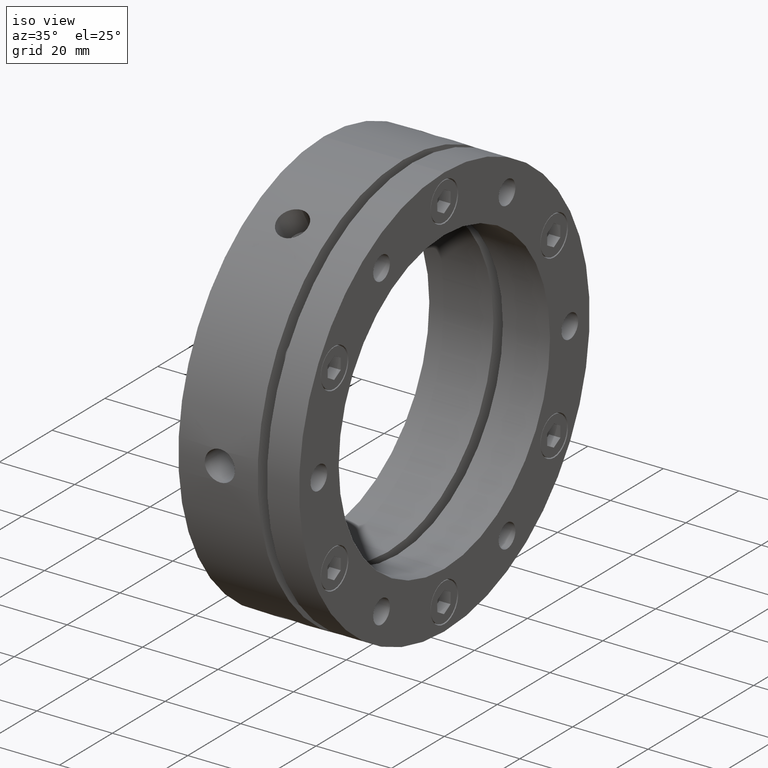
[diagram: clean part render]
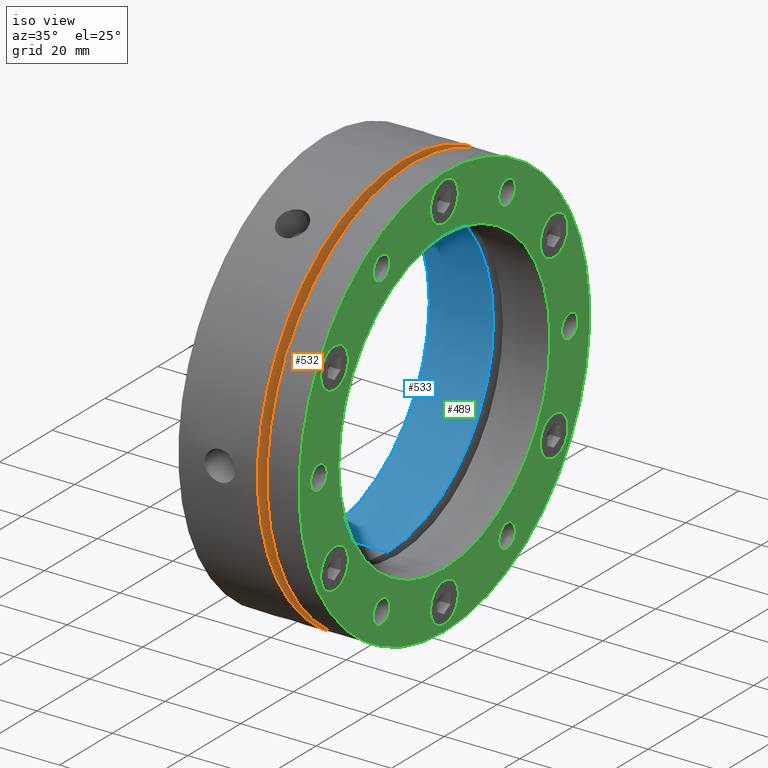
[diagram: same view with three faces highlighted in distinct colors, each labeled with its STEP entity id]
A machine part, iso view with three faces highlighted in distinct colors.
Their STEP definitions:

[orange] entity #532 — the highlighted planar face has unit normal (-1, 0, 0).
#24 = VERTEX_POINT ( 'NONE', #4724 ) ;
#50 = VERTEX_POINT ( 'NONE', #4747 ) ;
#72 = VERTEX_POINT ( 'NONE', #4767 ) ;
#75 = VERTEX_POINT ( 'NONE', #4770 ) ;
#76 = VERTEX_POINT ( 'NONE', #4771 ) ;
#79 = VERTEX_POINT ( 'NONE', #4774 ) ;
#80 = VERTEX_POINT ( 'NONE', #4775 ) ;
#83 = VERTEX_POINT ( 'NONE', #4778 ) ;
#84 = VERTEX_POINT ( 'NONE', #4779 ) ;
#87 = VERTEX_POINT ( 'NONE', #4782 ) ;
#88 = VERTEX_POINT ( 'NONE', #4783 ) ;
#238 = EDGE_CURVE ( 'NONE', #4516, #4531, #2577, .T. ) ;
#253 = EDGE_CURVE ( 'NONE', #80, #79, #2603, .T. ) ;
#256 = EDGE_CURVE ( 'NONE', #76, #75, #2607, .T. ) ;
#272 = EDGE_CURVE ( 'NONE', #72, #4522, #2624, .T. ) ;
#275 = EDGE_CURVE ( 'NONE', #4526, #4518, #2631, .T. ) ;
#284 = AXIS2_PLACEMENT_3D ( 'NONE', #3065, #3066, #3067 ) ;
#294 = AXIS2_PLACEMENT_3D ( 'NONE', #3028, #3029, #3030 ) ;
#312 = EDGE_CURVE ( 'NONE', #84, #83, #2653, .T. ) ;
#318 = EDGE_CURVE ( 'NONE', #88, #87, #2664, .T. ) ;
#369 = EDGE_CURVE ( 'NONE', #24, #50, #2741, .T. ) ;
#398 = EDGE_CURVE ( 'NONE', #87, #88, #2771, .T. ) ;
#399 = EDGE_CURVE ( 'NONE', #83, #84, #2772, .T. ) ;
#400 = EDGE_CURVE ( 'NONE', #79, #80, #2773, .T. ) ;
#401 = EDGE_CURVE ( 'NONE', #75, #76, #2774, .T. ) ;
#402 = EDGE_CURVE ( 'NONE', #4522, #72, #2775, .T. ) ;
#403 = EDGE_CURVE ( 'NONE', #4518, #4526, #2776, .T. ) ;
#404 = EDGE_CURVE ( 'NONE', #4531, #4516, #2777, .T. ) ;
#532 = ADVANCED_FACE ( 'NONE', ( #718, #726, #722, #720, #724, #727, #728, #729 ), #3910, .F. ) ;
#718 = FACE_BOUND ( 'NONE', #2419, .T. ) ;
#720 = FACE_BOUND ( 'NONE', #2420, .T. ) ;
#722 = FACE_BOUND ( 'NONE', #2406, .T. ) ;
#724 = FACE_BOUND ( 'NONE', #2399, .T. ) ;
#726 = FACE_BOUND ( 'NONE', #2407, .T. ) ;
#727 = FACE_BOUND ( 'NONE', #2398, .T. ) ;
#728 = FACE_BOUND ( 'NONE', #2397, .T. ) ;
#729 = FACE_OUTER_BOUND ( 'NONE', #2396, .T. ) ;
#976 = CIRCLE ( 'NONE', #4594, 55.00000000000000000 ) ;
#1571 = CARTESIAN_POINT ( 'NONE',  ( 20.99999999999999300, 0.0000000000000000000, 0.0000000000000000000 ) ) ;
#1572 = DIRECTION ( 'NONE',  ( -1.000000000000000000, -0.0000000000000000000, -0.0000000000000000000 ) ) ;
#1573 = DIRECTION ( 'NONE',  ( 0.0000000000000000000, 0.0000000000000000000, -1.000000000000000000 ) ) ;
#1866 = CARTESIAN_POINT ( 'NONE',  ( 20.99999999999999300, 41.56921938165307800, -27.25000000000003900 ) ) ;
#1869 = CARTESIAN_POINT ( 'NONE',  ( 20.99999999999999300, 41.56921938165311300, 27.24999999999998600 ) ) ;
#1870 = CARTESIAN_POINT ( 'NONE',  ( 20.99999999999999300, -8.881783999999999800E-015, -51.25000000000003600 ) ) ;
#1878 = CARTESIAN_POINT ( 'NONE',  ( 20.99999999999999300, 41.56921938165307800, -20.75000000000003900 ) ) ;
#1883 = CARTESIAN_POINT ( 'NONE',  ( 20.99999999999999300, 41.56921938165311300, 20.74999999999998600 ) ) ;
#2173 = ORIENTED_EDGE ( 'NONE', *, *, #3404, .F. ) ;
#2174 = ORIENTED_EDGE ( 'NONE', *, *, #369, .F. ) ;
#2175 = ORIENTED_EDGE ( 'NONE', *, *, #238, .F. ) ;
#2176 = ORIENTED_EDGE ( 'NONE', *, *, #404, .F. ) ;
#2177 = ORIENTED_EDGE ( 'NONE', *, *, #275, .F. ) ;
#2178 = ORIENTED_EDGE ( 'NONE', *, *, #403, .F. ) ;
#2179 = ORIENTED_EDGE ( 'NONE', *, *, #272, .F. ) ;
#2180 = ORIENTED_EDGE ( 'NONE', *, *, #402, .F. ) ;
#2181 = ORIENTED_EDGE ( 'NONE', *, *, #256, .F. ) ;
#2183 = ORIENTED_EDGE ( 'NONE', *, *, #401, .F. ) ;
#2184 = ORIENTED_EDGE ( 'NONE', *, *, #253, .F. ) ;
#2185 = ORIENTED_EDGE ( 'NONE', *, *, #400, .F. ) ;
#2187 = ORIENTED_EDGE ( 'NONE', *, *, #312, .F. ) ;
#2188 = ORIENTED_EDGE ( 'NONE', *, *, #399, .F. ) ;
#2189 = ORIENTED_EDGE ( 'NONE', *, *, #318, .F. ) ;
#2190 = ORIENTED_EDGE ( 'NONE', *, *, #398, .F. ) ;
#2228 = AXIS2_PLACEMENT_3D ( 'NONE', #3127, #3128, #3129 ) ;
#2231 = AXIS2_PLACEMENT_3D ( 'NONE', #3117, #3118, #3119 ) ;
#2233 = AXIS2_PLACEMENT_3D ( 'NONE', #3073, #3074, #3075 ) ;
#2243 = AXIS2_PLACEMENT_3D ( 'NONE', #3508, #3509, #3510 ) ;
#2257 = AXIS2_PLACEMENT_3D ( 'NONE', #3191, #3192, #3193 ) ;
#2260 = AXIS2_PLACEMENT_3D ( 'NONE', #3178, #3179, #3180 ) ;
#2396 = EDGE_LOOP ( 'NONE', ( #2174, #2173 ) ) ;
#2397 = EDGE_LOOP ( 'NONE', ( #2176, #2175 ) ) ;
#2398 = EDGE_LOOP ( 'NONE', ( #2178, #2177 ) ) ;
#2399 = EDGE_LOOP ( 'NONE', ( #2180, #2179 ) ) ;
#2406 = EDGE_LOOP ( 'NONE', ( #2185, #2184 ) ) ;
#2407 = EDGE_LOOP ( 'NONE', ( #2188, #2187 ) ) ;
#2419 = EDGE_LOOP ( 'NONE', ( #2190, #2189 ) ) ;
#2420 = EDGE_LOOP ( 'NONE', ( #2183, #2181 ) ) ;
#2577 = CIRCLE ( 'NONE', #294, 3.249999999999999600 ) ;
#2603 = CIRCLE ( 'NONE', #284, 3.249999999999999600 ) ;
#2607 = CIRCLE ( 'NONE', #2233, 3.249999999999999600 ) ;
#2624 = CIRCLE ( 'NONE', #2231, 3.250000000000002700 ) ;
#2631 = CIRCLE ( 'NONE', #2228, 3.249999999999999600 ) ;
#2653 = CIRCLE ( 'NONE', #2260, 3.250000000000002700 ) ;
#2664 = CIRCLE ( 'NONE', #2257, 44.49999999999999300 ) ;
#2741 = CIRCLE ( 'NONE', #2243, 55.00000000000000000 ) ;
#2771 = CIRCLE ( 'NONE', #4577, 44.49999999999999300 ) ;
#2772 = CIRCLE ( 'NONE', #4576, 3.250000000000002700 ) ;
#2773 = CIRCLE ( 'NONE', #4575, 3.249999999999999600 ) ;
#2774 = CIRCLE ( 'NONE', #4574, 3.249999999999999600 ) ;
#2775 = CIRCLE ( 'NONE', #4573, 3.250000000000002700 ) ;
#2776 = CIRCLE ( 'NONE', #4572, 3.249999999999999600 ) ;
#2777 = CIRCLE ( 'NONE', #4571, 3.249999999999999600 ) ;
#3028 = CARTESIAN_POINT ( 'NONE',  ( 20.99999999999999300, 41.56921938165311300, 23.99999999999998600 ) ) ;
#3029 = DIRECTION ( 'NONE',  ( 1.000000000000000000, 0.0000000000000000000, 0.0000000000000000000 ) ) ;
#3030 = DIRECTION ( 'NONE',  ( 0.0000000000000000000, 0.0000000000000000000, -1.000000000000000000 ) ) ;
#3065 = CARTESIAN_POINT ( 'NONE',  ( 20.99999999999999300, -41.56921938165308500, 24.00000000000002100 ) ) ;
#3066 = DIRECTION ( 'NONE',  ( 1.000000000000000000, 0.0000000000000000000, 0.0000000000000000000 ) ) ;
#3067 = DIRECTION ( 'NONE',  ( 0.0000000000000000000, 0.0000000000000000000, -1.000000000000000000 ) ) ;
#3073 = CARTESIAN_POINT ( 'NONE',  ( 20.99999999999999300, -41.56921938165309200, -24.00000000000000400 ) ) ;
#3074 = DIRECTION ( 'NONE',  ( 1.000000000000000000, 0.0000000000000000000, 0.0000000000000000000 ) ) ;
#3075 = DIRECTION ( 'NONE',  ( 0.0000000000000000000, 0.0000000000000000000, -1.000000000000000000 ) ) ;
#3117 = CARTESIAN_POINT ( 'NONE',  ( 20.99999999999999300, -8.881783999999999800E-015, -48.00000000000003600 ) ) ;
#3118 = DIRECTION ( 'NONE',  ( 1.000000000000000000, 0.0000000000000000000, 0.0000000000000000000 ) ) ;
#3119 = DIRECTION ( 'NONE',  ( 0.0000000000000000000, 0.0000000000000000000, -1.000000000000000000 ) ) ;
#3127 = CARTESIAN_POINT ( 'NONE',  ( 20.99999999999999300, 41.56921938165307800, -24.00000000000003900 ) ) ;
#3128 = DIRECTION ( 'NONE',  ( 1.000000000000000000, 0.0000000000000000000, 0.0000000000000000000 ) ) ;
#3129 = DIRECTION ( 'NONE',  ( 0.0000000000000000000, 0.0000000000000000000, -1.000000000000000000 ) ) ;
#3178 = CARTESIAN_POINT ( 'NONE',  ( 20.99999999999999300, 0.0000000000000000000, 48.00000000000003600 ) ) ;
#3179 = DIRECTION ( 'NONE',  ( 1.000000000000000000, 0.0000000000000000000, 0.0000000000000000000 ) ) ;
#3180 = DIRECTION ( 'NONE',  ( 0.0000000000000000000, 0.0000000000000000000, -1.000000000000000000 ) ) ;
#3191 = CARTESIAN_POINT ( 'NONE',  ( 20.99999999999999300, 0.0000000000000000000, 0.0000000000000000000 ) ) ;
#3192 = DIRECTION ( 'NONE',  ( 1.000000000000000000, -0.0000000000000000000, -0.0000000000000000000 ) ) ;
#3193 = DIRECTION ( 'NONE',  ( 0.0000000000000000000, 0.0000000000000000000, 1.000000000000000000 ) ) ;
#3404 = EDGE_CURVE ( 'NONE', #50, #24, #976, .T. ) ;
#3508 = CARTESIAN_POINT ( 'NONE',  ( 20.99999999999999300, 0.0000000000000000000, 0.0000000000000000000 ) ) ;
#3509 = DIRECTION ( 'NONE',  ( -1.000000000000000000, -0.0000000000000000000, -0.0000000000000000000 ) ) ;
#3510 = DIRECTION ( 'NONE',  ( 0.0000000000000000000, 0.0000000000000000000, -1.000000000000000000 ) ) ;
#3595 = CARTESIAN_POINT ( 'NONE',  ( 20.99999999999999300, 0.0000000000000000000, 0.0000000000000000000 ) ) ;
#3596 = DIRECTION ( 'NONE',  ( 1.000000000000000000, -0.0000000000000000000, -0.0000000000000000000 ) ) ;
#3597 = DIRECTION ( 'NONE',  ( 0.0000000000000000000, 0.0000000000000000000, 1.000000000000000000 ) ) ;
#3598 = CARTESIAN_POINT ( 'NONE',  ( 20.99999999999999300, 0.0000000000000000000, 48.00000000000003600 ) ) ;
#3599 = DIRECTION ( 'NONE',  ( 1.000000000000000000, 0.0000000000000000000, 0.0000000000000000000 ) ) ;
#3600 = DIRECTION ( 'NONE',  ( 0.0000000000000000000, 0.0000000000000000000, -1.000000000000000000 ) ) ;
#3601 = CARTESIAN_POINT ( 'NONE',  ( 20.99999999999999300, -41.56921938165308500, 24.00000000000002100 ) ) ;
#3602 = DIRECTION ( 'NONE',  ( 1.000000000000000000, 0.0000000000000000000, 0.0000000000000000000 ) ) ;
#3603 = DIRECTION ( 'NONE',  ( 0.0000000000000000000, 0.0000000000000000000, -1.000000000000000000 ) ) ;
#3604 = CARTESIAN_POINT ( 'NONE',  ( 20.99999999999999300, -41.56921938165309200, -24.00000000000000400 ) ) ;
#3605 = DIRECTION ( 'NONE',  ( 1.000000000000000000, 0.0000000000000000000, 0.0000000000000000000 ) ) ;
#3606 = DIRECTION ( 'NONE',  ( 0.0000000000000000000, 0.0000000000000000000, -1.000000000000000000 ) ) ;
#3607 = CARTESIAN_POINT ( 'NONE',  ( 20.99999999999999300, -8.881783999999999800E-015, -48.00000000000003600 ) ) ;
#3608 = DIRECTION ( 'NONE',  ( 1.000000000000000000, 0.0000000000000000000, 0.0000000000000000000 ) ) ;
#3609 = DIRECTION ( 'NONE',  ( 0.0000000000000000000, 0.0000000000000000000, -1.000000000000000000 ) ) ;
#3610 = CARTESIAN_POINT ( 'NONE',  ( 20.99999999999999300, 41.56921938165307800, -24.00000000000003900 ) ) ;
#3611 = DIRECTION ( 'NONE',  ( 1.000000000000000000, 0.0000000000000000000, 0.0000000000000000000 ) ) ;
#3612 = DIRECTION ( 'NONE',  ( 0.0000000000000000000, 0.0000000000000000000, -1.000000000000000000 ) ) ;
#3613 = CARTESIAN_POINT ( 'NONE',  ( 20.99999999999999300, 41.56921938165311300, 23.99999999999998600 ) ) ;
#3614 = DIRECTION ( 'NONE',  ( 1.000000000000000000, 0.0000000000000000000, 0.0000000000000000000 ) ) ;
#3615 = DIRECTION ( 'NONE',  ( 0.0000000000000000000, 0.0000000000000000000, -1.000000000000000000 ) ) ;
#3906 = DIRECTION ( 'NONE',  ( -1.000000000000000000, 0.0000000000000000000, 0.0000000000000000000 ) ) ;
#3908 = CARTESIAN_POINT ( 'NONE',  ( 20.99999999999999300, 49.75000000000000000, 0.0000000000000000000 ) ) ;
#3910 = PLANE ( 'NONE',  #4503 ) ;
#3912 = DIRECTION ( 'NONE',  ( 0.0000000000000000000, 0.0000000000000000000, 1.000000000000000000 ) ) ;
#4503 = AXIS2_PLACEMENT_3D ( 'NONE', #3908, #3906, #3912 ) ;
#4516 = VERTEX_POINT ( 'NONE', #1869 ) ;
#4518 = VERTEX_POINT ( 'NONE', #1866 ) ;
#4522 = VERTEX_POINT ( 'NONE', #1870 ) ;
#4526 = VERTEX_POINT ( 'NONE', #1878 ) ;
#4531 = VERTEX_POINT ( 'NONE', #1883 ) ;
#4571 = AXIS2_PLACEMENT_3D ( 'NONE', #3613, #3614, #3615 ) ;
#4572 = AXIS2_PLACEMENT_3D ( 'NONE', #3610, #3611, #3612 ) ;
#4573 = AXIS2_PLACEMENT_3D ( 'NONE', #3607, #3608, #3609 ) ;
#4574 = AXIS2_PLACEMENT_3D ( 'NONE', #3604, #3605, #3606 ) ;
#4575 = AXIS2_PLACEMENT_3D ( 'NONE', #3601, #3602, #3603 ) ;
#4576 = AXIS2_PLACEMENT_3D ( 'NONE', #3598, #3599, #3600 ) ;
#4577 = AXIS2_PLACEMENT_3D ( 'NONE', #3595, #3596, #3597 ) ;
#4594 = AXIS2_PLACEMENT_3D ( 'NONE', #1571, #1572, #1573 ) ;
#4724 = CARTESIAN_POINT ( 'NONE',  ( 20.99999999999999300, 0.0000000000000000000, -55.00000000000000000 ) ) ;
#4747 = CARTESIAN_POINT ( 'NONE',  ( 20.99999999999999300, 6.735557395310442600E-015, 55.00000000000000000 ) ) ;
#4767 = CARTESIAN_POINT ( 'NONE',  ( 20.99999999999999300, -8.483773790277109000E-015, -44.75000000000003600 ) ) ;
#4770 = CARTESIAN_POINT ( 'NONE',  ( 20.99999999999999300, -41.56921938165309200, -27.25000000000000400 ) ) ;
#4771 = CARTESIAN_POINT ( 'NONE',  ( 20.99999999999999300, -41.56921938165309200, -20.75000000000000400 ) ) ;
#4774 = CARTESIAN_POINT ( 'NONE',  ( 20.99999999999999300, -41.56921938165308500, 20.75000000000002100 ) ) ;
#4775 = CARTESIAN_POINT ( 'NONE',  ( 20.99999999999999300, -41.56921938165308500, 27.25000000000002100 ) ) ;
#4778 = CARTESIAN_POINT ( 'NONE',  ( 20.99999999999999300, 0.0000000000000000000, 44.75000000000003600 ) ) ;
#4779 = CARTESIAN_POINT ( 'NONE',  ( 20.99999999999999300, 3.980102097228895300E-016, 51.25000000000003600 ) ) ;
#4782 = CARTESIAN_POINT ( 'NONE',  ( 20.99999999999999300, 0.0000000000000000000, 44.49999999999999300 ) ) ;
#4783 = CARTESIAN_POINT ( 'NONE',  ( 20.99999999999999300, 5.449678256205720400E-015, -44.49999999999999300 ) ) ;

[blue] entity #533 — the highlighted cylindrical surface (partial cylindrical patch) has radius 40 mm, axis along (1, 0, 0).
#27 = VERTEX_POINT ( 'NONE', #4723 ) ;
#28 = VERTEX_POINT ( 'NONE', #4713 ) ;
#40 = VERTEX_POINT ( 'NONE', #4737 ) ;
#64 = VERTEX_POINT ( 'NONE', #4760 ) ;
#370 = EDGE_CURVE ( 'NONE', #40, #28, #2743, .T. ) ;
#413 = EDGE_CURVE ( 'NONE', #27, #64, #2759, .T. ) ;
#533 = ADVANCED_FACE ( 'NONE', ( #730 ), #735, .F. ) ;
#730 = FACE_OUTER_BOUND ( 'NONE', #2400, .T. ) ;
#735 = CYLINDRICAL_SURFACE ( 'NONE', #4501, 40.00000000000000000 ) ;
#1002 = LINE ( 'NONE', #1807, #1004 ) ;
#1004 = VECTOR ( 'NONE', #1805, 1000.000000000000000 ) ;
#1005 = LINE ( 'NONE', #1812, #1007 ) ;
#1007 = VECTOR ( 'NONE', #1808, 1000.000000000000000 ) ;
#1805 = DIRECTION ( 'NONE',  ( 1.000000000000000000, 0.0000000000000000000, 0.0000000000000000000 ) ) ;
#1807 = CARTESIAN_POINT ( 'NONE',  ( 15.99999999999998600, 4.898587196589413000E-015, 40.00000000000000000 ) ) ;
#1808 = DIRECTION ( 'NONE',  ( 1.000000000000000000, 0.0000000000000000000, 0.0000000000000000000 ) ) ;
#1812 = CARTESIAN_POINT ( 'NONE',  ( 15.99999999999998600, 0.0000000000000000000, -40.00000000000000000 ) ) ;
#2191 = ORIENTED_EDGE ( 'NONE', *, *, #413, .F. ) ;
#2192 = ORIENTED_EDGE ( 'NONE', *, *, #3460, .T. ) ;
#2194 = ORIENTED_EDGE ( 'NONE', *, *, #370, .F. ) ;
#2195 = ORIENTED_EDGE ( 'NONE', *, *, #3455, .F. ) ;
#2215 = AXIS2_PLACEMENT_3D ( 'NONE', #3511, #3512, #3513 ) ;
#2400 = EDGE_LOOP ( 'NONE', ( #2195, #2194, #2192, #2191 ) ) ;
#2743 = CIRCLE ( 'NONE', #2215, 40.00000000000000000 ) ;
#2759 = CIRCLE ( 'NONE', #4563, 40.00000000000000000 ) ;
#3455 = EDGE_CURVE ( 'NONE', #28, #27, #1002, .T. ) ;
#3460 = EDGE_CURVE ( 'NONE', #40, #64, #1005, .T. ) ;
#3511 = CARTESIAN_POINT ( 'NONE',  ( -1.040834085586084300E-014, 0.0000000000000000000, 0.0000000000000000000 ) ) ;
#3512 = DIRECTION ( 'NONE',  ( 1.000000000000000000, 0.0000000000000000000, 0.0000000000000000000 ) ) ;
#3513 = DIRECTION ( 'NONE',  ( 0.0000000000000000000, 0.0000000000000000000, -1.000000000000000000 ) ) ;
#3639 = CARTESIAN_POINT ( 'NONE',  ( 17.00000000000001100, 0.0000000000000000000, 0.0000000000000000000 ) ) ;
#3640 = DIRECTION ( 'NONE',  ( -1.000000000000000000, -0.0000000000000000000, -0.0000000000000000000 ) ) ;
#3641 = DIRECTION ( 'NONE',  ( 0.0000000000000000000, 0.0000000000000000000, -1.000000000000000000 ) ) ;
#3911 = DIRECTION ( 'NONE',  ( 0.0000000000000000000, 0.0000000000000000000, -1.000000000000000000 ) ) ;
#3913 = DIRECTION ( 'NONE',  ( 1.000000000000000000, 0.0000000000000000000, 0.0000000000000000000 ) ) ;
#3914 = CARTESIAN_POINT ( 'NONE',  ( 15.99999999999998600, 0.0000000000000000000, 0.0000000000000000000 ) ) ;
#4501 = AXIS2_PLACEMENT_3D ( 'NONE', #3914, #3913, #3911 ) ;
#4563 = AXIS2_PLACEMENT_3D ( 'NONE', #3639, #3640, #3641 ) ;
#4713 = CARTESIAN_POINT ( 'NONE',  ( -1.040834085586084300E-014, 4.898587196589413000E-015, 40.00000000000000000 ) ) ;
#4723 = CARTESIAN_POINT ( 'NONE',  ( 17.00000000000001100, 4.898587196589413000E-015, 40.00000000000000000 ) ) ;
#4737 = CARTESIAN_POINT ( 'NONE',  ( -1.040834085586084300E-014, 0.0000000000000000000, -40.00000000000000000 ) ) ;
#4760 = CARTESIAN_POINT ( 'NONE',  ( 17.00000000000001100, 0.0000000000000000000, -40.00000000000000000 ) ) ;

[green] entity #489 — the highlighted planar face has unit normal (1, 0, 0).
#95 = ORIENTED_EDGE ( 'NONE', *, *, #381, .T. ) ;
#103 = ORIENTED_EDGE ( 'NONE', *, *, #266, .T. ) ;
#113 = ORIENTED_EDGE ( 'NONE', *, *, #344, .T. ) ;
#114 = ORIENTED_EDGE ( 'NONE', *, *, #342, .T. ) ;
#117 = ORIENTED_EDGE ( 'NONE', *, *, #380, .T. ) ;
#119 = ORIENTED_EDGE ( 'NONE', *, *, #281, .T. ) ;
#120 = ORIENTED_EDGE ( 'NONE', *, *, #352, .T. ) ;
#124 = ORIENTED_EDGE ( 'NONE', *, *, #280, .T. ) ;
#128 = ORIENTED_EDGE ( 'NONE', *, *, #431, .T. ) ;
#136 = ORIENTED_EDGE ( 'NONE', *, *, #261, .T. ) ;
#137 = ORIENTED_EDGE ( 'NONE', *, *, #264, .T. ) ;
#142 = ORIENTED_EDGE ( 'NONE', *, *, #262, .T. ) ;
#145 = ORIENTED_EDGE ( 'NONE', *, *, #287, .F. ) ;
#147 = ORIENTED_EDGE ( 'NONE', *, *, #3298, .T. ) ;
#148 = ORIENTED_EDGE ( 'NONE', *, *, #260, .T. ) ;
#157 = ORIENTED_EDGE ( 'NONE', *, *, #3186, .T. ) ;
#160 = ORIENTED_EDGE ( 'NONE', *, *, #427, .T. ) ;
#162 = ORIENTED_EDGE ( 'NONE', *, *, #420, .T. ) ;
#166 = ORIENTED_EDGE ( 'NONE', *, *, #288, .T. ) ;
#168 = ORIENTED_EDGE ( 'NONE', *, *, #232, .T. ) ;
#170 = ORIENTED_EDGE ( 'NONE', *, *, #3308, .T. ) ;
#174 = ORIENTED_EDGE ( 'NONE', *, *, #236, .T. ) ;
#178 = ORIENTED_EDGE ( 'NONE', *, *, #268, .T. ) ;
#181 = ORIENTED_EDGE ( 'NONE', *, *, #3368, .F. ) ;
#187 = ORIENTED_EDGE ( 'NONE', *, *, #3295, .T. ) ;
#192 = ORIENTED_EDGE ( 'NONE', *, *, #240, .T. ) ;
#197 = ORIENTED_EDGE ( 'NONE', *, *, #3301, .T. ) ;
#204 = ORIENTED_EDGE ( 'NONE', *, *, #258, .T. ) ;
#232 = EDGE_CURVE ( 'NONE', #2319, #2320, #2571, .T. ) ;
#236 = EDGE_CURVE ( 'NONE', #2320, #2319, #2578, .T. ) ;
#240 = EDGE_CURVE ( 'NONE', #2325, #2324, #2581, .T. ) ;
#258 = EDGE_CURVE ( 'NONE', #2316, #2315, #2610, .T. ) ;
#260 = EDGE_CURVE ( 'NONE', #2312, #2311, #2613, .T. ) ;
#261 = EDGE_CURVE ( 'NONE', #2307, #2306, #2614, .T. ) ;
#262 = EDGE_CURVE ( 'NONE', #2291, #2290, #2615, .T. ) ;
#264 = EDGE_CURVE ( 'NONE', #2287, #2286, #2617, .T. ) ;
#266 = EDGE_CURVE ( 'NONE', #2303, #2302, #2619, .T. ) ;
#268 = EDGE_CURVE ( 'NONE', #2299, #2298, #2621, .T. ) ;
#280 = EDGE_CURVE ( 'NONE', #2283, #2282, #2639, .T. ) ;
#281 = EDGE_CURVE ( 'NONE', #2279, #2278, #2641, .T. ) ;
#287 = EDGE_CURVE ( 'NONE', #2276, #2275, #2644, .T. ) ;
#288 = EDGE_CURVE ( 'NONE', #2295, #2294, #2645, .T. ) ;
#293 = AXIS2_PLACEMENT_3D ( 'NONE', #3033, #3034, #3035 ) ;
#295 = AXIS2_PLACEMENT_3D ( 'NONE', #3024, #3025, #3026 ) ;
#297 = AXIS2_PLACEMENT_3D ( 'NONE', #3013, #3014, #3015 ) ;
#342 = EDGE_CURVE ( 'NONE', #2328, #2329, #2706, .T. ) ;
#344 = EDGE_CURVE ( 'NONE', #2324, #2325, #2707, .T. ) ;
#352 = EDGE_CURVE ( 'NONE', #2311, #2312, #2720, .T. ) ;
#380 = EDGE_CURVE ( 'NONE', #2306, #2307, #2753, .T. ) ;
#381 = EDGE_CURVE ( 'NONE', #2329, #2328, #2754, .T. ) ;
#420 = EDGE_CURVE ( 'NONE', #2298, #2299, #2794, .T. ) ;
#427 = EDGE_CURVE ( 'NONE', #2294, #2295, #2800, .T. ) ;
#431 = EDGE_CURVE ( 'NONE', #2290, #2291, #2808, .T. ) ;
#454 = AXIS2_PLACEMENT_3D ( 'NONE', #1334, #1335, #1336 ) ;
#489 = ADVANCED_FACE ( 'NONE', ( #619, #627, #623, #621, #625, #628, #629, #630, #631, #632, #633, #634, #635, #636 ), #3768, .T. ) ;
#619 = FACE_BOUND ( 'NONE', #2483, .T. ) ;
#621 = FACE_BOUND ( 'NONE', #2478, .T. ) ;
#623 = FACE_BOUND ( 'NONE', #2477, .T. ) ;
#625 = FACE_BOUND ( 'NONE', #2479, .T. ) ;
#627 = FACE_BOUND ( 'NONE', #2480, .T. ) ;
#628 = FACE_BOUND ( 'NONE', #2482, .T. ) ;
#629 = FACE_BOUND ( 'NONE', #2476, .T. ) ;
#630 = FACE_BOUND ( 'NONE', #2475, .T. ) ;
#631 = FACE_BOUND ( 'NONE', #2474, .T. ) ;
#632 = FACE_BOUND ( 'NONE', #2473, .T. ) ;
#633 = FACE_BOUND ( 'NONE', #2472, .T. ) ;
#634 = FACE_BOUND ( 'NONE', #2471, .T. ) ;
#635 = FACE_BOUND ( 'NONE', #2470, .T. ) ;
#636 = FACE_OUTER_BOUND ( 'NONE', #2469, .T. ) ;
#891 = CIRCLE ( 'NONE', #454, 3.149999999999999900 ) ;
#903 = CIRCLE ( 'NONE', #4615, 5.250000000000000900 ) ;
#905 = CIRCLE ( 'NONE', #4613, 5.250000000000000900 ) ;
#906 = CIRCLE ( 'NONE', #4614, 40.00000000000000000 ) ;
#911 = CIRCLE ( 'NONE', #4611, 5.249999999999997300 ) ;
#957 = CIRCLE ( 'NONE', #4598, 55.00000000000000000 ) ;
#1236 = CARTESIAN_POINT ( 'NONE',  ( 31.99999999999998600, 6.735557395310442600E-015, 55.00000000000000000 ) ) ;
#1241 = CARTESIAN_POINT ( 'NONE',  ( 31.99999999999998600, 0.0000000000000000000, -55.00000000000000000 ) ) ;
#1242 = CARTESIAN_POINT ( 'NONE',  ( 31.99999999999998600, 0.0000000000000000000, -40.00000000000000000 ) ) ;
#1244 = CARTESIAN_POINT ( 'NONE',  ( 31.99999999999998600, 4.898587196589413000E-015, 40.00000000000000000 ) ) ;
#1246 = CARTESIAN_POINT ( 'NONE',  ( 31.99999999999998600, 0.0000000000000000000, 42.75000000000003600 ) ) ;
#1247 = CARTESIAN_POINT ( 'NONE',  ( 31.99999999999998600, 6.429395695523607100E-016, 53.25000000000003600 ) ) ;
#1250 = CARTESIAN_POINT ( 'NONE',  ( 31.99999999999998600, -41.56921938165308500, 18.75000000000002100 ) ) ;
#1251 = CARTESIAN_POINT ( 'NONE',  ( 31.99999999999998600, -41.56921938165308500, 29.25000000000002100 ) ) ;
#1254 = CARTESIAN_POINT ( 'NONE',  ( 31.99999999999998600, -41.56921938165309200, -29.25000000000000400 ) ) ;
#1255 = CARTESIAN_POINT ( 'NONE',  ( 31.99999999999998600, -41.56921938165309200, -18.75000000000000400 ) ) ;
#1258 = CARTESIAN_POINT ( 'NONE',  ( 31.99999999999998600, -8.881783999999999800E-015, -53.25000000000003600 ) ) ;
#1259 = CARTESIAN_POINT ( 'NONE',  ( 31.99999999999998600, -8.238844430447640300E-015, -42.75000000000003600 ) ) ;
#1262 = CARTESIAN_POINT ( 'NONE',  ( 31.99999999999998600, 41.56921938165307800, -29.25000000000003900 ) ) ;
#1263 = CARTESIAN_POINT ( 'NONE',  ( 31.99999999999998600, 41.56921938165307800, -18.75000000000003900 ) ) ;
#1266 = CARTESIAN_POINT ( 'NONE',  ( 31.99999999999998600, 41.56921938165311300, 18.74999999999998600 ) ) ;
#1267 = CARTESIAN_POINT ( 'NONE',  ( 31.99999999999998600, 41.56921938165311300, 29.24999999999998900 ) ) ;
#1270 = CARTESIAN_POINT ( 'NONE',  ( 31.99999999999998600, -23.75000000000003200, 37.98620667976081900 ) ) ;
#1271 = CARTESIAN_POINT ( 'NONE',  ( 31.99999999999998600, -23.75000000000003200, 44.28620667976081600 ) ) ;
#1275 = CARTESIAN_POINT ( 'NONE',  ( 31.99999999999998600, -47.50000000000000000, -3.150000000000031400 ) ) ;
#1276 = CARTESIAN_POINT ( 'NONE',  ( 31.99999999999998600, -47.50000000000000000, 3.149999999999968800 ) ) ;
#1279 = CARTESIAN_POINT ( 'NONE',  ( 31.99999999999998600, -23.74999999999997900, -44.28620667976085200 ) ) ;
#1280 = CARTESIAN_POINT ( 'NONE',  ( 31.99999999999998600, -23.74999999999997900, -37.98620667976085500 ) ) ;
#1283 = CARTESIAN_POINT ( 'NONE',  ( 31.99999999999998600, 23.75000000000002800, -44.28620667976082400 ) ) ;
#1284 = CARTESIAN_POINT ( 'NONE',  ( 31.99999999999998600, 23.75000000000002800, -37.98620667976082600 ) ) ;
#1288 = CARTESIAN_POINT ( 'NONE',  ( 31.99999999999998600, 47.50000000000000000, -3.149999999999986600 ) ) ;
#1289 = CARTESIAN_POINT ( 'NONE',  ( 31.99999999999998600, 47.50000000000000000, 3.150000000000013700 ) ) ;
#1292 = CARTESIAN_POINT ( 'NONE',  ( 31.99999999999998600, 23.75000000000000000, 37.98620667976083400 ) ) ;
#1293 = CARTESIAN_POINT ( 'NONE',  ( 31.99999999999998600, 23.75000000000000000, 44.28620667976083100 ) ) ;
#1334 = CARTESIAN_POINT ( 'NONE',  ( 31.99999999999998600, -23.74999999999997900, -41.13620667976085300 ) ) ;
#1335 = DIRECTION ( 'NONE',  ( -1.000000000000000000, -0.0000000000000000000, -0.0000000000000000000 ) ) ;
#1336 = DIRECTION ( 'NONE',  ( 0.0000000000000000000, 0.0000000000000000000, -1.000000000000000000 ) ) ;
#1354 = CARTESIAN_POINT ( 'NONE',  ( 31.99999999999998600, 41.56921938165311300, 23.99999999999998600 ) ) ;
#1355 = DIRECTION ( 'NONE',  ( -1.000000000000000000, -0.0000000000000000000, -0.0000000000000000000 ) ) ;
#1356 = DIRECTION ( 'NONE',  ( 0.0000000000000000000, 0.0000000000000000000, -1.000000000000000000 ) ) ;
#1358 = CARTESIAN_POINT ( 'NONE',  ( 31.99999999999998600, 0.0000000000000000000, 0.0000000000000000000 ) ) ;
#1359 = DIRECTION ( 'NONE',  ( -1.000000000000000000, -0.0000000000000000000, -0.0000000000000000000 ) ) ;
#1360 = DIRECTION ( 'NONE',  ( 0.0000000000000000000, 0.0000000000000000000, -1.000000000000000000 ) ) ;
#1363 = CARTESIAN_POINT ( 'NONE',  ( 31.99999999999998600, -41.56921938165308500, 24.00000000000002100 ) ) ;
#1364 = DIRECTION ( 'NONE',  ( -1.000000000000000000, -0.0000000000000000000, -0.0000000000000000000 ) ) ;
#1365 = DIRECTION ( 'NONE',  ( 0.0000000000000000000, 0.0000000000000000000, -1.000000000000000000 ) ) ;
#1373 = CARTESIAN_POINT ( 'NONE',  ( 31.99999999999998600, 0.0000000000000000000, 48.00000000000003600 ) ) ;
#1374 = DIRECTION ( 'NONE',  ( -1.000000000000000000, -0.0000000000000000000, -0.0000000000000000000 ) ) ;
#1375 = DIRECTION ( 'NONE',  ( 0.0000000000000000000, 0.0000000000000000000, -1.000000000000000000 ) ) ;
#1443 = CARTESIAN_POINT ( 'NONE',  ( 31.99999999999998600, 0.0000000000000000000, 0.0000000000000000000 ) ) ;
#1444 = DIRECTION ( 'NONE',  ( -1.000000000000000000, -0.0000000000000000000, -0.0000000000000000000 ) ) ;
#1445 = DIRECTION ( 'NONE',  ( 0.0000000000000000000, 0.0000000000000000000, -1.000000000000000000 ) ) ;
#2210 = AXIS2_PLACEMENT_3D ( 'NONE', #3077, #3078, #3079 ) ;
#2219 = AXIS2_PLACEMENT_3D ( 'NONE', #3148, #3149, #3150 ) ;
#2220 = AXIS2_PLACEMENT_3D ( 'NONE', #3249, #3250, #3251 ) ;
#2223 = AXIS2_PLACEMENT_3D ( 'NONE', #3139, #3140, #3141 ) ;
#2224 = AXIS2_PLACEMENT_3D ( 'NONE', #3136, #3137, #3138 ) ;
#2234 = AXIS2_PLACEMENT_3D ( 'NONE', #3083, #3084, #3085 ) ;
#2235 = AXIS2_PLACEMENT_3D ( 'NONE', #3255, #3256, #3257 ) ;
#2237 = AXIS2_PLACEMENT_3D ( 'NONE', #3109, #3110, #3111 ) ;
#2239 = AXIS2_PLACEMENT_3D ( 'NONE', #3089, #3090, #3091 ) ;
#2242 = AXIS2_PLACEMENT_3D ( 'NONE', #3095, #3096, #3097 ) ;
#2247 = AXIS2_PLACEMENT_3D ( 'NONE', #3153, #3155, #3157 ) ;
#2248 = AXIS2_PLACEMENT_3D ( 'NONE', #3271, #3272, #3273 ) ;
#2249 = AXIS2_PLACEMENT_3D ( 'NONE', #3086, #3087, #3088 ) ;
#2251 = AXIS2_PLACEMENT_3D ( 'NONE', #3101, #3102, #3103 ) ;
#2259 = AXIS2_PLACEMENT_3D ( 'NONE', #3541, #3542, #3543 ) ;
#2266 = AXIS2_PLACEMENT_3D ( 'NONE', #3544, #3545, #3546 ) ;
#2275 = VERTEX_POINT ( 'NONE', #1236 ) ;
#2276 = VERTEX_POINT ( 'NONE', #1241 ) ;
#2278 = VERTEX_POINT ( 'NONE', #1242 ) ;
#2279 = VERTEX_POINT ( 'NONE', #1244 ) ;
#2282 = VERTEX_POINT ( 'NONE', #1246 ) ;
#2283 = VERTEX_POINT ( 'NONE', #1247 ) ;
#2286 = VERTEX_POINT ( 'NONE', #1250 ) ;
#2287 = VERTEX_POINT ( 'NONE', #1251 ) ;
#2290 = VERTEX_POINT ( 'NONE', #1254 ) ;
#2291 = VERTEX_POINT ( 'NONE', #1255 ) ;
#2294 = VERTEX_POINT ( 'NONE', #1258 ) ;
#2295 = VERTEX_POINT ( 'NONE', #1259 ) ;
#2298 = VERTEX_POINT ( 'NONE', #1262 ) ;
#2299 = VERTEX_POINT ( 'NONE', #1263 ) ;
#2302 = VERTEX_POINT ( 'NONE', #1266 ) ;
#2303 = VERTEX_POINT ( 'NONE', #1267 ) ;
#2306 = VERTEX_POINT ( 'NONE', #1270 ) ;
#2307 = VERTEX_POINT ( 'NONE', #1271 ) ;
#2311 = VERTEX_POINT ( 'NONE', #1275 ) ;
#2312 = VERTEX_POINT ( 'NONE', #1276 ) ;
#2315 = VERTEX_POINT ( 'NONE', #1279 ) ;
#2316 = VERTEX_POINT ( 'NONE', #1280 ) ;
#2319 = VERTEX_POINT ( 'NONE', #1283 ) ;
#2320 = VERTEX_POINT ( 'NONE', #1284 ) ;
#2324 = VERTEX_POINT ( 'NONE', #1288 ) ;
#2325 = VERTEX_POINT ( 'NONE', #1289 ) ;
#2328 = VERTEX_POINT ( 'NONE', #1292 ) ;
#2329 = VERTEX_POINT ( 'NONE', #1293 ) ;
#2469 = EDGE_LOOP ( 'NONE', ( #145, #181 ) ) ;
#2470 = EDGE_LOOP ( 'NONE', ( #114, #95 ) ) ;
#2471 = EDGE_LOOP ( 'NONE', ( #113, #192 ) ) ;
#2472 = EDGE_LOOP ( 'NONE', ( #168, #174 ) ) ;
#2473 = EDGE_LOOP ( 'NONE', ( #157, #204 ) ) ;
#2474 = EDGE_LOOP ( 'NONE', ( #120, #148 ) ) ;
#2475 = EDGE_LOOP ( 'NONE', ( #117, #136 ) ) ;
#2476 = EDGE_LOOP ( 'NONE', ( #187, #103 ) ) ;
#2477 = EDGE_LOOP ( 'NONE', ( #197, #137 ) ) ;
#2478 = EDGE_LOOP ( 'NONE', ( #128, #142 ) ) ;
#2479 = EDGE_LOOP ( 'NONE', ( #160, #166 ) ) ;
#2480 = EDGE_LOOP ( 'NONE', ( #170, #124 ) ) ;
#2482 = EDGE_LOOP ( 'NONE', ( #162, #178 ) ) ;
#2483 = EDGE_LOOP ( 'NONE', ( #147, #119 ) ) ;
#2571 = CIRCLE ( 'NONE', #297, 3.149999999999999900 ) ;
#2578 = CIRCLE ( 'NONE', #295, 3.149999999999999900 ) ;
#2581 = CIRCLE ( 'NONE', #293, 3.149999999999999900 ) ;
#2610 = CIRCLE ( 'NONE', #2210, 3.149999999999999900 ) ;
#2613 = CIRCLE ( 'NONE', #2234, 3.149999999999999900 ) ;
#2614 = CIRCLE ( 'NONE', #2249, 3.149999999999999900 ) ;
#2615 = CIRCLE ( 'NONE', #2239, 5.250000000000000900 ) ;
#2617 = CIRCLE ( 'NONE', #2242, 5.250000000000000900 ) ;
#2619 = CIRCLE ( 'NONE', #2251, 5.250000000000000900 ) ;
#2621 = CIRCLE ( 'NONE', #2237, 5.250000000000000900 ) ;
#2639 = CIRCLE ( 'NONE', #2224, 5.249999999999997300 ) ;
#2641 = CIRCLE ( 'NONE', #2223, 40.00000000000000000 ) ;
#2644 = CIRCLE ( 'NONE', #2219, 55.00000000000000000 ) ;
#2645 = CIRCLE ( 'NONE', #2247, 5.249999999999997300 ) ;
#2706 = CIRCLE ( 'NONE', #2220, 3.149999999999999900 ) ;
#2707 = CIRCLE ( 'NONE', #2235, 3.149999999999999900 ) ;
#2720 = CIRCLE ( 'NONE', #2248, 3.149999999999999900 ) ;
#2753 = CIRCLE ( 'NONE', #2259, 3.149999999999999900 ) ;
#2754 = CIRCLE ( 'NONE', #2266, 3.149999999999999900 ) ;
#2794 = CIRCLE ( 'NONE', #4556, 5.250000000000000900 ) ;
#2800 = CIRCLE ( 'NONE', #4552, 5.249999999999997300 ) ;
#2808 = CIRCLE ( 'NONE', #4551, 5.250000000000000900 ) ;
#3013 = CARTESIAN_POINT ( 'NONE',  ( 31.99999999999998600, 23.75000000000002800, -41.13620667976082500 ) ) ;
#3014 = DIRECTION ( 'NONE',  ( -1.000000000000000000, -0.0000000000000000000, -0.0000000000000000000 ) ) ;
#3015 = DIRECTION ( 'NONE',  ( 0.0000000000000000000, 0.0000000000000000000, -1.000000000000000000 ) ) ;
#3024 = CARTESIAN_POINT ( 'NONE',  ( 31.99999999999998600, 23.75000000000002800, -41.13620667976082500 ) ) ;
#3025 = DIRECTION ( 'NONE',  ( -1.000000000000000000, -0.0000000000000000000, -0.0000000000000000000 ) ) ;
#3026 = DIRECTION ( 'NONE',  ( 0.0000000000000000000, 0.0000000000000000000, -1.000000000000000000 ) ) ;
#3033 = CARTESIAN_POINT ( 'NONE',  ( 31.99999999999998600, 47.50000000000000000, 1.332268000000000100E-014 ) ) ;
#3034 = DIRECTION ( 'NONE',  ( -1.000000000000000000, -0.0000000000000000000, -0.0000000000000000000 ) ) ;
#3035 = DIRECTION ( 'NONE',  ( 0.0000000000000000000, 0.0000000000000000000, -1.000000000000000000 ) ) ;
#3077 = CARTESIAN_POINT ( 'NONE',  ( 31.99999999999998600, -23.74999999999997900, -41.13620667976085300 ) ) ;
#3078 = DIRECTION ( 'NONE',  ( -1.000000000000000000, -0.0000000000000000000, -0.0000000000000000000 ) ) ;
#3079 = DIRECTION ( 'NONE',  ( 0.0000000000000000000, 0.0000000000000000000, -1.000000000000000000 ) ) ;
#3083 = CARTESIAN_POINT ( 'NONE',  ( 31.99999999999998600, -47.50000000000000000, -3.108623999999999800E-014 ) ) ;
#3084 = DIRECTION ( 'NONE',  ( -1.000000000000000000, -0.0000000000000000000, -0.0000000000000000000 ) ) ;
#3085 = DIRECTION ( 'NONE',  ( 0.0000000000000000000, 0.0000000000000000000, -1.000000000000000000 ) ) ;
#3086 = CARTESIAN_POINT ( 'NONE',  ( 31.99999999999998600, -23.75000000000003200, 41.13620667976081800 ) ) ;
#3087 = DIRECTION ( 'NONE',  ( -1.000000000000000000, -0.0000000000000000000, -0.0000000000000000000 ) ) ;
#3088 = DIRECTION ( 'NONE',  ( 0.0000000000000000000, 0.0000000000000000000, -1.000000000000000000 ) ) ;
#3089 = CARTESIAN_POINT ( 'NONE',  ( 31.99999999999998600, -41.56921938165309200, -24.00000000000000400 ) ) ;
#3090 = DIRECTION ( 'NONE',  ( -1.000000000000000000, -0.0000000000000000000, -0.0000000000000000000 ) ) ;
#3091 = DIRECTION ( 'NONE',  ( 0.0000000000000000000, 0.0000000000000000000, -1.000000000000000000 ) ) ;
#3095 = CARTESIAN_POINT ( 'NONE',  ( 31.99999999999998600, -41.56921938165308500, 24.00000000000002100 ) ) ;
#3096 = DIRECTION ( 'NONE',  ( -1.000000000000000000, -0.0000000000000000000, -0.0000000000000000000 ) ) ;
#3097 = DIRECTION ( 'NONE',  ( 0.0000000000000000000, 0.0000000000000000000, -1.000000000000000000 ) ) ;
#3101 = CARTESIAN_POINT ( 'NONE',  ( 31.99999999999998600, 41.56921938165311300, 23.99999999999998600 ) ) ;
#3102 = DIRECTION ( 'NONE',  ( -1.000000000000000000, -0.0000000000000000000, -0.0000000000000000000 ) ) ;
#3103 = DIRECTION ( 'NONE',  ( 0.0000000000000000000, 0.0000000000000000000, -1.000000000000000000 ) ) ;
#3109 = CARTESIAN_POINT ( 'NONE',  ( 31.99999999999998600, 41.56921938165307800, -24.00000000000003900 ) ) ;
#3110 = DIRECTION ( 'NONE',  ( -1.000000000000000000, -0.0000000000000000000, -0.0000000000000000000 ) ) ;
#3111 = DIRECTION ( 'NONE',  ( 0.0000000000000000000, 0.0000000000000000000, -1.000000000000000000 ) ) ;
#3136 = CARTESIAN_POINT ( 'NONE',  ( 31.99999999999998600, 0.0000000000000000000, 48.00000000000003600 ) ) ;
#3137 = DIRECTION ( 'NONE',  ( -1.000000000000000000, -0.0000000000000000000, -0.0000000000000000000 ) ) ;
#3138 = DIRECTION ( 'NONE',  ( 0.0000000000000000000, 0.0000000000000000000, -1.000000000000000000 ) ) ;
#3139 = CARTESIAN_POINT ( 'NONE',  ( 31.99999999999998600, 0.0000000000000000000, 0.0000000000000000000 ) ) ;
#3140 = DIRECTION ( 'NONE',  ( -1.000000000000000000, -0.0000000000000000000, -0.0000000000000000000 ) ) ;
#3141 = DIRECTION ( 'NONE',  ( 0.0000000000000000000, 0.0000000000000000000, -1.000000000000000000 ) ) ;
#3148 = CARTESIAN_POINT ( 'NONE',  ( 31.99999999999998600, 0.0000000000000000000, 0.0000000000000000000 ) ) ;
#3149 = DIRECTION ( 'NONE',  ( -1.000000000000000000, -0.0000000000000000000, -0.0000000000000000000 ) ) ;
#3150 = DIRECTION ( 'NONE',  ( 0.0000000000000000000, 0.0000000000000000000, -1.000000000000000000 ) ) ;
#3153 = CARTESIAN_POINT ( 'NONE',  ( 31.99999999999998600, -8.881783999999999800E-015, -48.00000000000003600 ) ) ;
#3155 = DIRECTION ( 'NONE',  ( -1.000000000000000000, -0.0000000000000000000, -0.0000000000000000000 ) ) ;
#3157 = DIRECTION ( 'NONE',  ( 0.0000000000000000000, 0.0000000000000000000, -1.000000000000000000 ) ) ;
#3186 = EDGE_CURVE ( 'NONE', #2315, #2316, #891, .T. ) ;
#3249 = CARTESIAN_POINT ( 'NONE',  ( 31.99999999999998600, 23.75000000000000000, 41.13620667976083200 ) ) ;
#3250 = DIRECTION ( 'NONE',  ( -1.000000000000000000, -0.0000000000000000000, -0.0000000000000000000 ) ) ;
#3251 = DIRECTION ( 'NONE',  ( 0.0000000000000000000, 0.0000000000000000000, -1.000000000000000000 ) ) ;
#3255 = CARTESIAN_POINT ( 'NONE',  ( 31.99999999999998600, 47.50000000000000000, 1.332268000000000100E-014 ) ) ;
#3256 = DIRECTION ( 'NONE',  ( -1.000000000000000000, -0.0000000000000000000, -0.0000000000000000000 ) ) ;
#3257 = DIRECTION ( 'NONE',  ( 0.0000000000000000000, 0.0000000000000000000, -1.000000000000000000 ) ) ;
#3271 = CARTESIAN_POINT ( 'NONE',  ( 31.99999999999998600, -47.50000000000000000, -3.108623999999999800E-014 ) ) ;
#3272 = DIRECTION ( 'NONE',  ( -1.000000000000000000, -0.0000000000000000000, -0.0000000000000000000 ) ) ;
#3273 = DIRECTION ( 'NONE',  ( 0.0000000000000000000, 0.0000000000000000000, -1.000000000000000000 ) ) ;
#3295 = EDGE_CURVE ( 'NONE', #2302, #2303, #903, .T. ) ;
#3298 = EDGE_CURVE ( 'NONE', #2278, #2279, #906, .T. ) ;
#3301 = EDGE_CURVE ( 'NONE', #2286, #2287, #905, .T. ) ;
#3308 = EDGE_CURVE ( 'NONE', #2282, #2283, #911, .T. ) ;
#3368 = EDGE_CURVE ( 'NONE', #2275, #2276, #957, .T. ) ;
#3541 = CARTESIAN_POINT ( 'NONE',  ( 31.99999999999998600, -23.75000000000003200, 41.13620667976081800 ) ) ;
#3542 = DIRECTION ( 'NONE',  ( -1.000000000000000000, -0.0000000000000000000, -0.0000000000000000000 ) ) ;
#3543 = DIRECTION ( 'NONE',  ( 0.0000000000000000000, 0.0000000000000000000, -1.000000000000000000 ) ) ;
#3544 = CARTESIAN_POINT ( 'NONE',  ( 31.99999999999998600, 23.75000000000000000, 41.13620667976083200 ) ) ;
#3545 = DIRECTION ( 'NONE',  ( -1.000000000000000000, -0.0000000000000000000, -0.0000000000000000000 ) ) ;
#3546 = DIRECTION ( 'NONE',  ( 0.0000000000000000000, 0.0000000000000000000, -1.000000000000000000 ) ) ;
#3660 = CARTESIAN_POINT ( 'NONE',  ( 31.99999999999998600, 41.56921938165307800, -24.00000000000003900 ) ) ;
#3661 = DIRECTION ( 'NONE',  ( -1.000000000000000000, -0.0000000000000000000, -0.0000000000000000000 ) ) ;
#3662 = DIRECTION ( 'NONE',  ( 0.0000000000000000000, 0.0000000000000000000, -1.000000000000000000 ) ) ;
#3682 = CARTESIAN_POINT ( 'NONE',  ( 31.99999999999998600, -8.881783999999999800E-015, -48.00000000000003600 ) ) ;
#3683 = DIRECTION ( 'NONE',  ( -1.000000000000000000, -0.0000000000000000000, -0.0000000000000000000 ) ) ;
#3684 = DIRECTION ( 'NONE',  ( 0.0000000000000000000, 0.0000000000000000000, -1.000000000000000000 ) ) ;
#3689 = CARTESIAN_POINT ( 'NONE',  ( 31.99999999999998600, -41.56921938165309200, -24.00000000000000400 ) ) ;
#3690 = DIRECTION ( 'NONE',  ( -1.000000000000000000, -0.0000000000000000000, -0.0000000000000000000 ) ) ;
#3691 = DIRECTION ( 'NONE',  ( 0.0000000000000000000, 0.0000000000000000000, -1.000000000000000000 ) ) ;
#3763 = DIRECTION ( 'NONE',  ( 1.000000000000000000, -0.0000000000000000000, 0.0000000000000000000 ) ) ;
#3766 = CARTESIAN_POINT ( 'NONE',  ( 31.99999999999998600, 47.50000000000000000, 0.0000000000000000000 ) ) ;
#3768 = PLANE ( 'NONE',  #4689 ) ;
#3769 = DIRECTION ( 'NONE',  ( 0.0000000000000000000, 0.0000000000000000000, -1.000000000000000000 ) ) ;
#4551 = AXIS2_PLACEMENT_3D ( 'NONE', #3689, #3690, #3691 ) ;
#4552 = AXIS2_PLACEMENT_3D ( 'NONE', #3682, #3683, #3684 ) ;
#4556 = AXIS2_PLACEMENT_3D ( 'NONE', #3660, #3661, #3662 ) ;
#4598 = AXIS2_PLACEMENT_3D ( 'NONE', #1443, #1444, #1445 ) ;
#4611 = AXIS2_PLACEMENT_3D ( 'NONE', #1373, #1374, #1375 ) ;
#4613 = AXIS2_PLACEMENT_3D ( 'NONE', #1363, #1364, #1365 ) ;
#4614 = AXIS2_PLACEMENT_3D ( 'NONE', #1358, #1359, #1360 ) ;
#4615 = AXIS2_PLACEMENT_3D ( 'NONE', #1354, #1355, #1356 ) ;
#4689 = AXIS2_PLACEMENT_3D ( 'NONE', #3766, #3763, #3769 ) ;